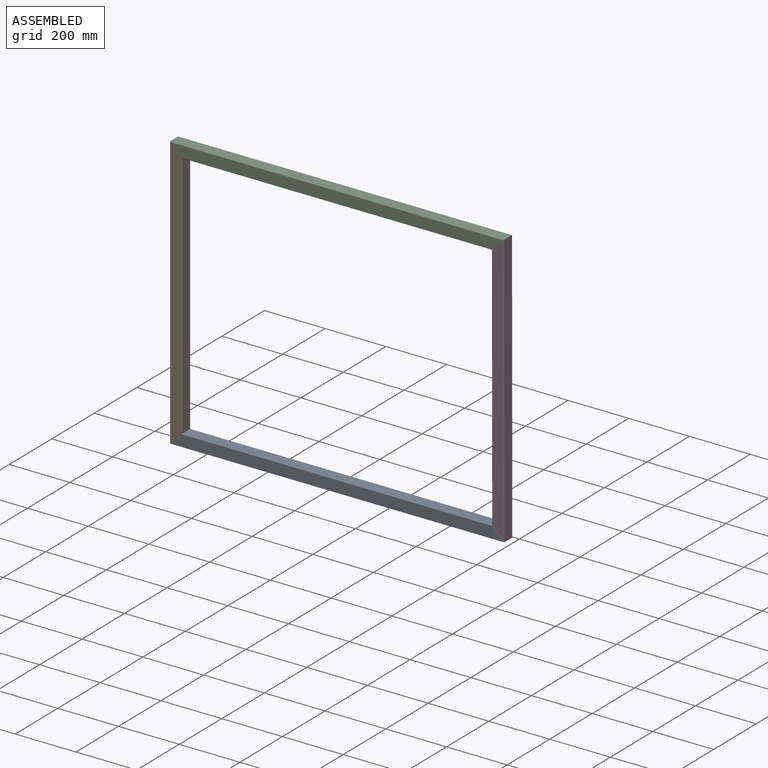
[diagram: assembled view]
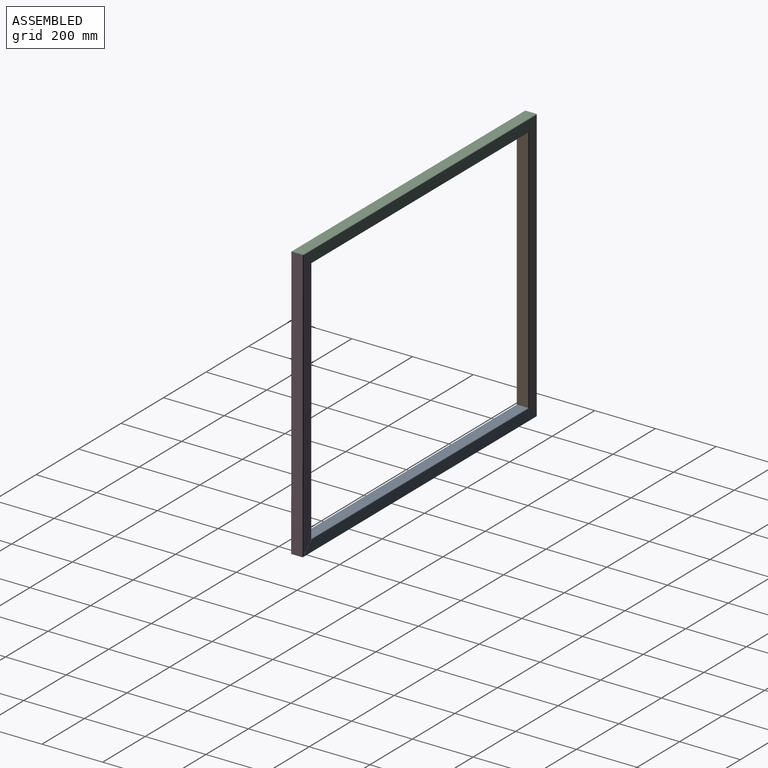
[diagram: assembled view, second angle]
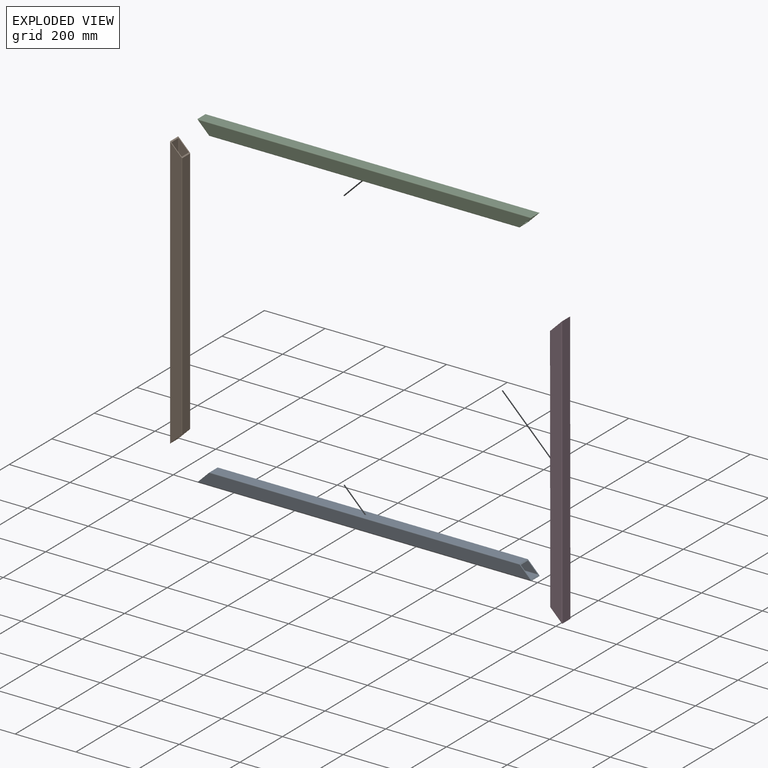
[diagram: exploded view]
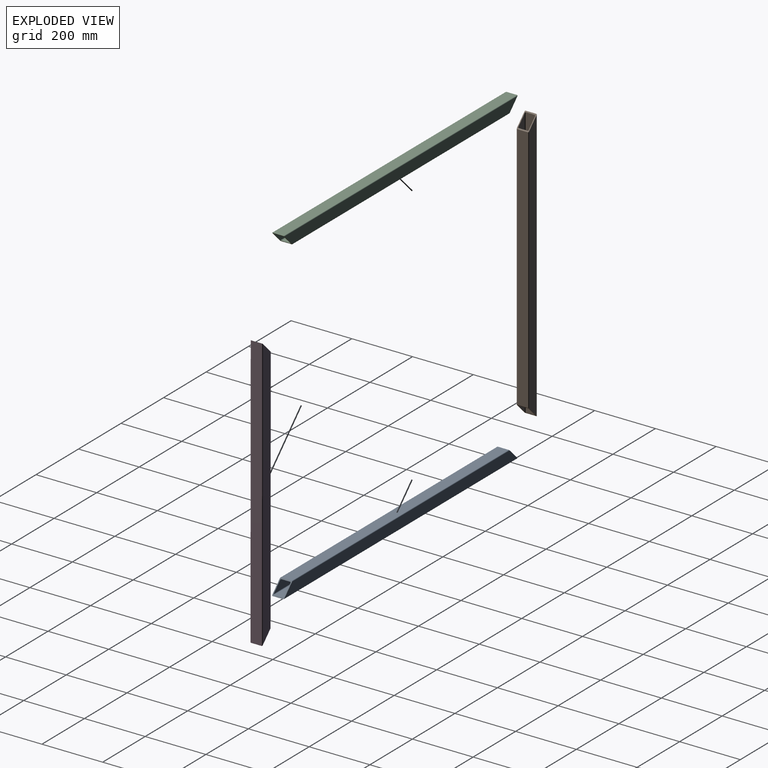
[diagram: exploded view, second angle]
ASSEMBLY  parts=4 mates=3
PART A: 19 faces, bbox 40.8x40.8x1100.8 mm
  f0: plane 1096.01x36mm, normal (0,1,0), area 38160.8mm2, adj f2,f3,f17,f18
  f1: plane 1096.01x36mm, normal (0,-1,0), area 38160.8mm2, adj f5,f6,f17,f18
  f2: cylinder r=2mm len=1024.04mm, axis (0,0,-1), area 3209.1mm2, adj f0,f15,f17,f18
  f3: cylinder r=2mm len=1099.99mm, axis (0,0,-1), area 3451.2mm2, adj f0,f4,f16,f17,f18
  f4: plane 1099.99x36mm, normal (-1,0,0), area 39599.6mm2, adj f3,f5,f16,f17
  f5: cylinder r=2mm len=1099.99mm, axis (0,0,-1), area 3451.2mm2, adj f1,f4,f16,f17,f18
  f6: cylinder r=2mm len=1024.04mm, axis (0,0,-1), area 3209.1mm2, adj f1,f15,f17,f18
  f7: plane 1090.01x30mm, normal (0,1,0), area 31800.7mm2, adj f8,f14,f17,f18
  f8: cylinder r=2mm len=1094.01mm, axis (0,0,-1), area 3430.7mm2, adj f7,f9,f17,f18
  f9: plane 1094.01x30mm, normal (1,0,0), area 32820.3mm2, adj f8,f10,f17,f18
  f10: cylinder r=2mm len=1094.01mm, axis (0,0,-1), area 3430.7mm2, adj f9,f11,f17,f18
  f11: plane 1090.01x30mm, normal (0,-1,0), area 31800.7mm2, adj f10,f12,f17,f18
  f12: cylinder r=2mm len=1030.03mm, axis (0,0,-1), area 3229.7mm2, adj f11,f13,f17,f18
  f13: plane 1026.03x30mm, normal (-1,0,0), area 30781mm2, adj f12,f14,f17,f18
  f14: cylinder r=2mm len=1030.03mm, axis (0,0,-1), area 3229.7mm2, adj f7,f13,f17,f18
  f15: plane 1020.04x36mm, normal (1,0,0), area 36721.4mm2, adj f2,f6,f17,f18
  f16: plane 36.55x0.02mm, normal (0,0,-1), area 0.7mm2, adj f3,f4,f5,f18
  f17: plane 40.84x40.84mm, normal (0.71,0,0.71), area 627.8mm2, adj f0,f1,f2,f3,f4,f5,f6,f7
  f18: plane 40.84x40.82mm, normal (0.71,0,-0.71), area 626.8mm2, adj f0,f1,f2,f3,f5,f6,f7,f8
PART B: 19 faces, bbox 40x40x900 mm
  f0: plane 820x36mm, normal (1,0,0), area 29520mm2, adj f3,f7,f17,f18
  f1: plane 896x36mm, normal (0,1,0), area 30960mm2, adj f3,f4,f17,f18
  f2: plane 896x36mm, normal (0,-1,0), area 30960mm2, adj f6,f7,f17,f18
  f3: cylinder r=2mm len=824mm, axis (0,0,-1), area 2580.7mm2, adj f0,f1,f17,f18
  f4: cylinder r=2mm len=899.97mm, axis (0,0,-1), area 2822.9mm2, adj f1,f5,f16,f17,f18
  f5: plane 899.97x36mm, normal (-1,0,0), area 32398.9mm2, adj f4,f6,f16,f17
  f6: cylinder r=2mm len=899.97mm, axis (0,0,-1), area 2822.9mm2, adj f2,f5,f16,f17,f18
  f7: cylinder r=2mm len=824mm, axis (0,0,-1), area 2580.7mm2, adj f0,f2,f17,f18
  f8: plane 890x30mm, normal (0,1,0), area 25800mm2, adj f9,f15,f17,f18
  f9: cylinder r=2mm len=894mm, axis (0,0,-1), area 2804mm2, adj f8,f10,f17,f18
  f10: plane 894x30mm, normal (1,0,0), area 26819.9mm2, adj f9,f11,f17,f18
  f11: cylinder r=2mm len=894mm, axis (0,0,-1), area 2804mm2, adj f10,f12,f17,f18
  f12: plane 890x30mm, normal (0,-1,0), area 25800mm2, adj f11,f13,f17,f18
  f13: cylinder r=2mm len=830mm, axis (0,0,-1), area 2599.5mm2, adj f12,f14,f17,f18
  f14: plane 826x30mm, normal (-1,0,0), area 24780mm2, adj f13,f15,f17,f18
  f15: cylinder r=2mm len=830mm, axis (0,0,-1), area 2599.5mm2, adj f8,f14,f17,f18
  f16: plane 36.66x0.03mm, normal (0,0,-1), area 1mm2, adj f4,f5,f6,f18
  f17: plane 40x40mm, normal (0.71,0,0.71), area 627.7mm2, adj f0,f1,f2,f3,f4,f5,f6,f7
  f18: plane 40x40mm, normal (0.71,0,-0.71), area 626.7mm2, adj f0,f1,f2,f3,f4,f6,f7,f8
PART C: same geometry as A
PART D: same geometry as B
PLACE A rot(axis=(0,-1,0),90deg) t=(550.75,245.99,-554.65)mm
PLACE B t=(-529.29,245.99,-574.92)mm fixed
PLACE C rot(axis=(-0.71,0,0.71),180deg) t=(550.71,245.99,305.6)mm
PLACE D rot(axis=(0,0,1),180deg) t=(531.69,245.99,-574.43)mm
MATE fastened C.f17 <-> B.f17  axis (-0.71,0,-0.71) through (-529.29,245.99,305.06)mm
MATE fastened A.f17 <-> B.f18  axis (-0.71,0,0.71) through (-529.24,245.99,-554.89)mm
MATE fastened D.f17 <-> C.f18  axis (-0.71,0,0.71) through (530.7,245.99,305.56)mm
